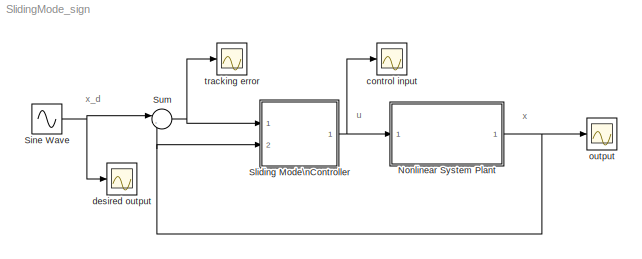
MODEL SlidingMode_sign
KIND model
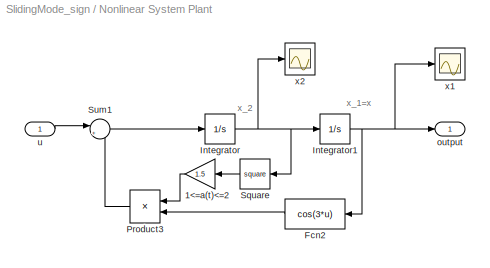
BLOCK [SubSystem] Nonlinear System Plant
  Ports = [1, 1]
  RequestExecContextInheritance = off
  SID = 35
BLOCK [Gain] Nonlinear System Plant/1<=a(t)<=2
  Gain = 1.5
  OutDataTypeStr = Inherit: Inherit via internal rule
  ParamDataTypeStr = Inherit: Inherit via internal rule
  SID = 37
  SaturateOnIntegerOverflow = off
BLOCK [Fcn] Nonlinear System Plant/Fcn2
  Expr = cos(3*u)
  SID = 38
BLOCK [Integrator] Nonlinear System Plant/Integrator
  Ports = [1, 1]
  SID = 39
BLOCK [Integrator] Nonlinear System Plant/Integrator1
  Ports = [1, 1]
  SID = 40
BLOCK [Product] Nonlinear System Plant/Product3
  InputSameDT = off
  OutDataTypeStr = Inherit: Inherit via internal rule
  Ports = [2, 1]
  SID = 41
  SaturateOnIntegerOverflow = off
BLOCK [Math] Nonlinear System Plant/Square
  Operator = square
  Ports = [1, 1]
  SID = 58
  SignedPower = off
BLOCK [Sum] Nonlinear System Plant/Sum1
  IconShape = round
  InputSameDT = off
  Inputs = |+-
  OutDataTypeStr = Inherit: Inherit via internal rule
  Ports = [2, 1]
  SID = 42
  SaturateOnIntegerOverflow = off
BLOCK [Outport] Nonlinear System Plant/output
  IconDisplay = Port number
  SID = 45
BLOCK [Inport] Nonlinear System Plant/u
  IconDisplay = Port number
  SID = 36
BLOCK [Scope] Nonlinear System Plant/x1
  Floating = off
  NumInputPorts = 1
  Ports = [1]
  SID = 43
  ScopeSpecificationString = C++SS(StrPVP('Location','[188, 390, 512, 629]'),StrPVP('Open','off'),MxPVP('AxesTitles',54,'struct(''axes1'',''%<SignalLabel>'')'),StrPVP('YMin','-0.125568'),StrPVP('YMax','-0.11361'),StrPVP('SaveToWorkspace','on'),StrPVP('SaveName','x1'),StrPVP('DataFormat','Array'),StrPVP('LimitDataPoints','on'),StrPVP('Decimation','1'),StrPVP('BlockParamSampleInput','off'))
BLOCK [Scope] Nonlinear System Plant/x2
  Floating = off
  NumInputPorts = 1
  Ports = [1]
  SID = 44
  ScopeSpecificationString = C++SS(StrPVP('Location','[188, 390, 512, 629]'),StrPVP('Open','off'),MxPVP('AxesTitles',54,'struct(''axes1'',''%<SignalLabel>'')'),StrPVP('YMin','-0.125568'),StrPVP('YMax','-0.11361'),StrPVP('SaveToWorkspace','on'),StrPVP('SaveName','x2'),StrPVP('DataFormat','Array'),StrPVP('LimitDataPoints','on'),StrPVP('Decimation','1'),StrPVP('BlockParamSampleInput','off'))
BLOCK [Sin] Sine Wave
  Frequency = pi/2
  Ports = [0, 1]
  SID = 48
  SampleTime = 0
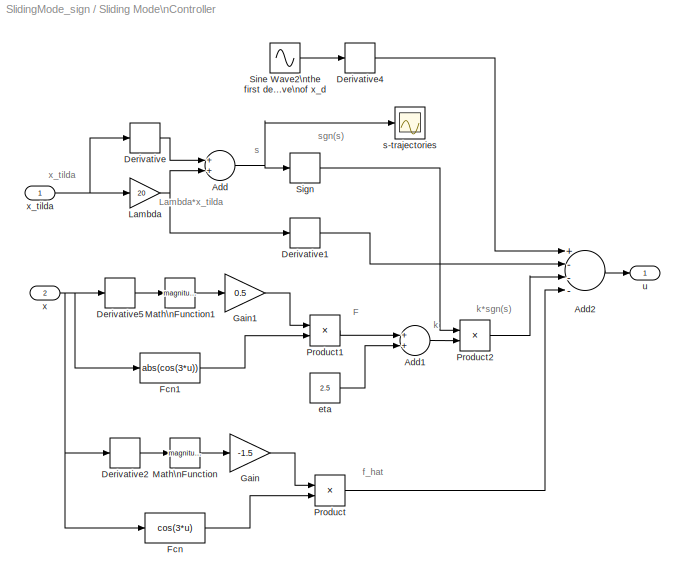
BLOCK [SubSystem] Sliding Mode\nController
  Ports = [2, 1]
  RequestExecContextInheritance = off
  SID = 1
BLOCK [Sum] Sliding Mode\nController/Add
  InputSameDT = off
  OutDataTypeStr = Inherit: Inherit via internal rule
  Ports = [2, 1]
  SID = 4
  SaturateOnIntegerOverflow = off
BLOCK [Sum] Sliding Mode\nController/Add1
  InputSameDT = off
  OutDataTypeStr = Inherit: Inherit via internal rule
  Ports = [2, 1]
  SID = 5
  SaturateOnIntegerOverflow = off
BLOCK [Sum] Sliding Mode\nController/Add2
  InputSameDT = off
  Inputs = +---
  OutDataTypeStr = Inherit: Inherit via internal rule
  Ports = [4, 1]
  SID = 6
  SaturateOnIntegerOverflow = off
BLOCK [Derivative] Sliding Mode\nController/Derivative
  SID = 7
BLOCK [Derivative] Sliding Mode\nController/Derivative1
  SID = 8
BLOCK [Derivative] Sliding Mode\nController/Derivative2
  SID = 9
BLOCK [Derivative] Sliding Mode\nController/Derivative4
  SID = 10
BLOCK [Derivative] Sliding Mode\nController/Derivative5
  SID = 11
BLOCK [Fcn] Sliding Mode\nController/Fcn
  Expr = cos(3*u)
  SID = 12
BLOCK [Fcn] Sliding Mode\nController/Fcn1
  Expr = abs(cos(3*u))
  SID = 13
BLOCK [Gain] Sliding Mode\nController/Gain
  Gain = -1.5
  OutDataTypeStr = Inherit: Inherit via internal rule
  ParamDataTypeStr = Inherit: Inherit via internal rule
  SID = 14
  SaturateOnIntegerOverflow = off
BLOCK [Gain] Sliding Mode\nController/Gain1
  Gain = 0.5
  OutDataTypeStr = Inherit: Inherit via internal rule
  ParamDataTypeStr = Inherit: Inherit via internal rule
  SID = 15
  SaturateOnIntegerOverflow = off
BLOCK [Gain] Sliding Mode\nController/Lambda
  Gain = 20
  OutDataTypeStr = Inherit: Inherit via internal rule
  ParamDataTypeStr = Inherit: Inherit via internal rule
  SID = 16
  SaturateOnIntegerOverflow = off
BLOCK [Math] Sliding Mode\nController/Math\nFunction
  Operator = magnitude^2
  Ports = [1, 1]
  SID = 17
BLOCK [Math] Sliding Mode\nController/Math\nFunction1
  Operator = magnitude^2
  Ports = [1, 1]
  SID = 18
BLOCK [Product] Sliding Mode\nController/Product
  InputSameDT = off
  OutDataTypeStr = Inherit: Inherit via internal rule
  Ports = [2, 1]
  SID = 19
  SaturateOnIntegerOverflow = off
BLOCK [Product] Sliding Mode\nController/Product1
  InputSameDT = off
  OutDataTypeStr = Inherit: Inherit via internal rule
  Ports = [2, 1]
  SID = 20
  SaturateOnIntegerOverflow = off
BLOCK [Product] Sliding Mode\nController/Product2
  InputSameDT = off
  OutDataTypeStr = Inherit: Inherit via internal rule
  Ports = [2, 1]
  SID = 21
  SaturateOnIntegerOverflow = off
BLOCK [Signum] Sliding Mode\nController/Sign
  SID = 22
BLOCK [Sin] Sliding Mode\nController/Sine Wave2\nthe first derivative\nof x_d
  Amplitude = -pi/2
  Frequency = pi/2
  Phase = pi/2
  Ports = [0, 1]
  SID = 23
  SampleTime = 0
BLOCK [Constant] Sliding Mode\nController/eta
  SID = 24
  Value = 2.5
BLOCK [Scope] Sliding Mode\nController/s-trajectories
  Floating = off
  NumInputPorts = 1
  Ports = [1]
  SID = 25
  ScopeSpecificationString = C++SS(StrPVP('Location','[188, 390, 512, 629]'),StrPVP('Open','off'),MxPVP('AxesTitles',54,'struct(''axes1'',''%<SignalLabel>'')'),StrPVP('YMin','-0.125568'),StrPVP('YMax','-0.11361'),StrPVP('SaveToWorkspace','on'),StrPVP('SaveName','s_trajectories'),StrPVP('DataFormat','Array'),StrPVP('LimitDataPoints','on'),StrPVP('Decimation','1'),StrPVP('BlockParamSampleInput','off'))
BLOCK [Outport] Sliding Mode\nController/u
  IconDisplay = Port number
  SID = 26
BLOCK [Inport] Sliding Mode\nController/x
  IconDisplay = Port number
  Port = 2
  SID = 3
BLOCK [Inport] Sliding Mode\nController/x_tilda
  IconDisplay = Port number
  SID = 2
BLOCK [Sum] Sum
  IconShape = round
  InputSameDT = off
  Inputs = |-+
  OutDataTypeStr = Inherit: Inherit via internal rule
  Ports = [2, 1]
  SID = 49
  SaturateOnIntegerOverflow = off
BLOCK [Scope] control input
  Floating = off
  NumInputPorts = 1
  Ports = [1]
  SID = 50
  ScopeSpecificationString = Simulink.scopes.TimeScopeBlockCfg('CurrentConfiguration', extmgr.ConfigurationSet(extmgr.Configuration('Core','General UI',true),extmgr.Configuration('Core','Source UI',true),extmgr.Configuration('Sources','WiredSimulink',true,'DataLogging',true,'DataLoggingVariableName','control_input','DataLoggingSaveFormat','Array','DataLoggingDecimation','1','DataLoggingDecimateData',true),extmgr.Configuration...<+1716ch>
BLOCK [Scope] desired output
  Floating = off
  NumInputPorts = 1
  Ports = [1]
  SID = 51
  ScopeSpecificationString = Simulink.scopes.TimeScopeBlockCfg('CurrentConfiguration', extmgr.ConfigurationSet(extmgr.Configuration('Core','General UI',true),extmgr.Configuration('Core','Source UI',true),extmgr.Configuration('Sources','WiredSimulink',true,'DataLogging',true,'DataLoggingVariableName','desired_output','DataLoggingSaveFormat','Array','DataLoggingLimitDataPoints',true,'DataLoggingDecimation','1','DataLoggingDecim...<+1715ch>
BLOCK [Scope] output
  Floating = off
  NumInputPorts = 1
  Ports = [1]
  SID = 52
  ScopeSpecificationString = Simulink.scopes.TimeScopeBlockCfg('CurrentConfiguration', extmgr.ConfigurationSet(extmgr.Configuration('Core','General UI',true,'DisplayFullSourceName',true),extmgr.Configuration('Core','Source UI',true),extmgr.Configuration('Sources','WiredSimulink',true,'DataLogging',true,'DataLoggingVariableName','output','DataLoggingSaveFormat','Array','DataLoggingDecimation','1','DataLoggingDecimateData',true...<+1761ch>
BLOCK [Scope] tracking error
  Floating = off
  NumInputPorts = 1
  Ports = [1]
  SID = 53
  ScopeSpecificationString = Simulink.scopes.TimeScopeBlockCfg('CurrentConfiguration', extmgr.ConfigurationSet(extmgr.Configuration('Core','General UI',true),extmgr.Configuration('Core','Source UI',true),extmgr.Configuration('Sources','WiredSimulink',true,'DataLogging',true,'DataLoggingVariableName','tracking_error','DataLoggingSaveFormat','Array','DataLoggingDecimation','1','DataLoggingDecimateData',true),extmgr.Configuratio...<+1671ch>
ANNOTATION (root): u
ANNOTATION (root): x
ANNOTATION (root): x_d
ANNOTATION Nonlinear System Plant: x_1=x
ANNOTATION Nonlinear System Plant: x_2
ANNOTATION Sliding Mode\nController: F
ANNOTATION Sliding Mode\nController: Lambda*x_tilda
ANNOTATION Sliding Mode\nController: f_hat
ANNOTATION Sliding Mode\nController: k
ANNOTATION Sliding Mode\nController: k*sgn(s)
ANNOTATION Sliding Mode\nController: s
ANNOTATION Sliding Mode\nController: sgn(s)
ANNOTATION Sliding Mode\nController: x_tilda
LINE Nonlinear System Plant/1<=a(t)<=2:1 -> Nonlinear System Plant/Product3:1
LINE Nonlinear System Plant/Fcn2:1 -> Nonlinear System Plant/Product3:2
NET Nonlinear System Plant/Integrator1:1 -> Nonlinear System Plant/Fcn2:1, Nonlinear System Plant/output:1, Nonlinear System Plant/x1:1
NET Nonlinear System Plant/Integrator:1 -> Nonlinear System Plant/Integrator1:1, Nonlinear System Plant/Square:1, Nonlinear System Plant/x2:1
LINE Nonlinear System Plant/Product3:1 -> Nonlinear System Plant/Sum1:2
LINE Nonlinear System Plant/Square:1 -> Nonlinear System Plant/1<=a(t)<=2:1
LINE Nonlinear System Plant/Sum1:1 -> Nonlinear System Plant/Integrator:1
LINE Nonlinear System Plant/u:1 -> Nonlinear System Plant/Sum1:1
NET Nonlinear System Plant:1 -> Sliding Mode\nController:2, Sum:2, output:1
NET Sine Wave:1 -> Sum:1, desired output:1
LINE Sliding Mode\nController/Add1:1 -> Sliding Mode\nController/Product2:2
LINE Sliding Mode\nController/Add2:1 -> Sliding Mode\nController/u:1
NET Sliding Mode\nController/Add:1 -> Sliding Mode\nController/Sign:1, Sliding Mode\nController/s-trajectories:1
LINE Sliding Mode\nController/Derivative1:1 -> Sliding Mode\nController/Add2:2
LINE Sliding Mode\nController/Derivative2:1 -> Sliding Mode\nController/Math\nFunction:1
LINE Sliding Mode\nController/Derivative4:1 -> Sliding Mode\nController/Add2:1
LINE Sliding Mode\nController/Derivative5:1 -> Sliding Mode\nController/Math\nFunction1:1
LINE Sliding Mode\nController/Derivative:1 -> Sliding Mode\nController/Add:1
LINE Sliding Mode\nController/Fcn1:1 -> Sliding Mode\nController/Product1:2
LINE Sliding Mode\nController/Fcn:1 -> Sliding Mode\nController/Product:2
LINE Sliding Mode\nController/Gain1:1 -> Sliding Mode\nController/Product1:1
LINE Sliding Mode\nController/Gain:1 -> Sliding Mode\nController/Product:1
NET Sliding Mode\nController/Lambda:1 -> Sliding Mode\nController/Add:2, Sliding Mode\nController/Derivative1:1
LINE Sliding Mode\nController/Math\nFunction1:1 -> Sliding Mode\nController/Gain1:1
LINE Sliding Mode\nController/Math\nFunction:1 -> Sliding Mode\nController/Gain:1
LINE Sliding Mode\nController/Product1:1 -> Sliding Mode\nController/Add1:1
LINE Sliding Mode\nController/Product2:1 -> Sliding Mode\nController/Add2:3
LINE Sliding Mode\nController/Product:1 -> Sliding Mode\nController/Add2:4
LINE Sliding Mode\nController/Sign:1 -> Sliding Mode\nController/Product2:1
LINE Sliding Mode\nController/Sine Wave2\nthe first derivative\nof x_d:1 -> Sliding Mode\nController/Derivative4:1
LINE Sliding Mode\nController/eta:1 -> Sliding Mode\nController/Add1:2
NET Sliding Mode\nController/x:1 -> Sliding Mode\nController/Derivative2:1, Sliding Mode\nController/Derivative5:1, Sliding Mode\nController/Fcn1:1, Sliding Mode\nController/Fcn:1
NET Sliding Mode\nController/x_tilda:1 -> Sliding Mode\nController/Derivative:1, Sliding Mode\nController/Lambda:1
NET Sliding Mode\nController:1 -> Nonlinear System Plant:1, control input:1
NET Sum:1 -> Sliding Mode\nController:1, tracking error:1
note: NET lines group one-source signal fan-out (src -> all destinations, sorted); 1:1 wires keep LINE
